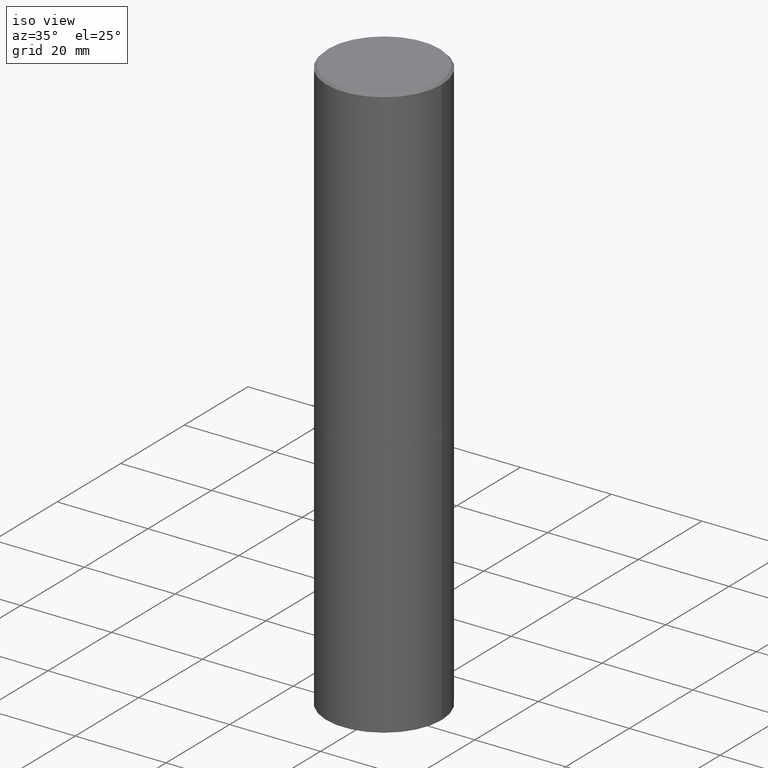
[diagram: clean part render]
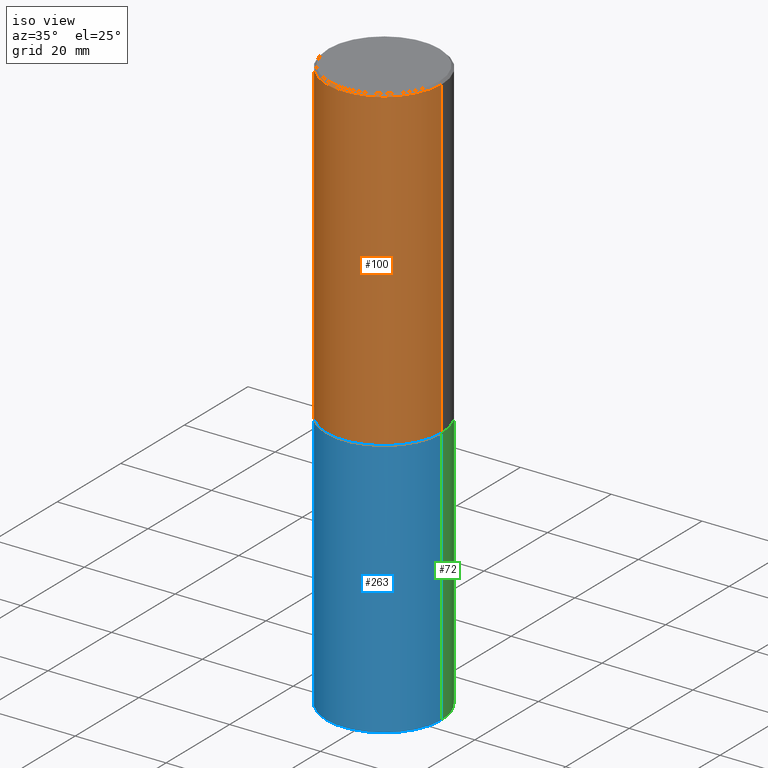
[diagram: same view with three faces highlighted in distinct colors, each labeled with its STEP entity id]
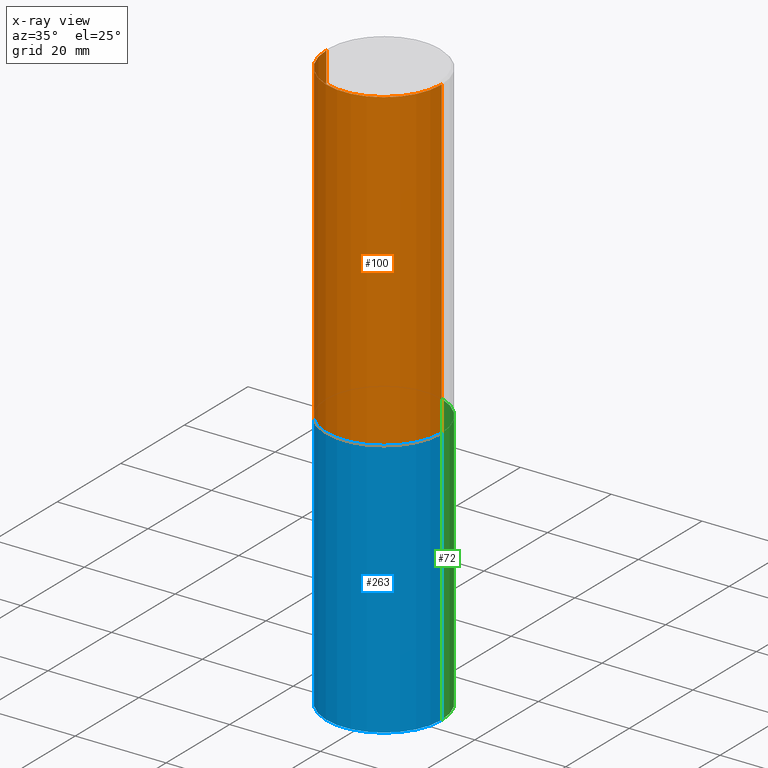
[diagram: x-ray of the same camera — body ghosted, the three highlighted faces saturated]
A machine part, iso view with three faces highlighted in distinct colors.
The next image is the same camera in x-ray (body ghosted, the three faces saturated) — at least one of them is partly hidden behind the body in this view.
Their STEP definitions:

[orange] entity #100 — the highlighted cylindrical surface (partial cylindrical patch) has radius 12.7 mm, axis along (-0, 0, 1).
#7 = VERTEX_POINT ( 'NONE', #15 ) ;
#15 = CARTESIAN_POINT ( 'NONE',  ( 0.5000000000000001110, -1.308956353932294179E-14, -2.749000000000000110 ) ) ;
#23 = EDGE_CURVE ( 'NONE', #7, #349, #48, .T. ) ;
#48 = LINE ( 'NONE', #161, #317 ) ;
#63 = CARTESIAN_POINT ( 'NONE',  ( 0.4999999999999996114, -3.500078625662626318E-15, -0.02000000000000010797 ) ) ;
#71 = VERTEX_POINT ( 'NONE', #213 ) ;
#79 = EDGE_CURVE ( 'NONE', #228, #349, #256, .T. ) ;
#85 = DIRECTION ( 'NONE',  ( 1.000000000000000000, -6.982962677686267499E-15, 4.876176775795936353E-29 ) ) ;
#100 = ADVANCED_FACE ( 'NONE', ( #143 ), #255, .T. ) ;
#130 = AXIS2_PLACEMENT_3D ( 'NONE', #200, #147, #199 ) ;
#141 = DIRECTION ( 'NONE',  ( -2.445468806185136877E-29, 3.491481338843145188E-15, 1.000000000000000000 ) ) ;
#143 = FACE_OUTER_BOUND ( 'NONE', #293, .T. ) ;
#147 = DIRECTION ( 'NONE',  ( -2.445468806185136597E-29, 3.491481338843145583E-15, 1.000000000000000000 ) ) ;
#155 = ORIENTED_EDGE ( 'NONE', *, *, #290, .F. ) ;
#158 = DIRECTION ( 'NONE',  ( -2.445468806185136597E-29, 3.491481338843145583E-15, 1.000000000000000000 ) ) ;
#161 = CARTESIAN_POINT ( 'NONE',  ( 0.4999999999999998335, -3.491481338843132566E-15, 2.438088387897967336E-29 ) ) ;
#164 = DIRECTION ( 'NONE',  ( -2.445468806185136877E-29, 3.491481338843145188E-15, 1.000000000000000000 ) ) ;
#165 = EDGE_CURVE ( 'NONE', #71, #7, #287, .T. ) ;
#167 = AXIS2_PLACEMENT_3D ( 'NONE', #171, #205, #85 ) ;
#171 = CARTESIAN_POINT ( 'NONE',  ( 0.000000000000000000, 0.000000000000000000, 0.000000000000000000 ) ) ;
#182 = ORIENTED_EDGE ( 'NONE', *, *, #23, .T. ) ;
#199 = DIRECTION ( 'NONE',  ( 1.000000000000000000, -6.982962677686265133E-15, 0.000000000000000000 ) ) ;
#200 = CARTESIAN_POINT ( 'NONE',  ( 6.722593748202941159E-29, -9.598082200479808430E-15, -2.749000000000000110 ) ) ;
#201 = CARTESIAN_POINT ( 'NONE',  ( -0.4999999999999998335, 3.552713678800499746E-15, -2.459467545127452330E-29 ) ) ;
#205 = DIRECTION ( 'NONE',  ( -2.445468806185136597E-29, 3.491481338843145583E-15, 1.000000000000000000 ) ) ;
#213 = CARTESIAN_POINT ( 'NONE',  ( -0.5000000000000001110, -1.281242234827831779E-15, -2.749000000000000110 ) ) ;
#228 = VERTEX_POINT ( 'NONE', #277 ) ;
#255 = CYLINDRICAL_SURFACE ( 'NONE', #167, 0.4999999999999998335 ) ;
#256 = CIRCLE ( 'NONE', #338, 0.4999999999999996114 ) ;
#277 = CARTESIAN_POINT ( 'NONE',  ( -0.4999999999999996114, 3.421651712066267296E-15, -0.02000000000000010797 ) ) ;
#279 = LINE ( 'NONE', #201, #299 ) ;
#287 = CIRCLE ( 'NONE', #130, 0.5000000000000001110 ) ;
#290 = EDGE_CURVE ( 'NONE', #71, #228, #279, .T. ) ;
#293 = EDGE_LOOP ( 'NONE', ( #155, #318, #182, #298 ) ) ;
#298 = ORIENTED_EDGE ( 'NONE', *, *, #79, .F. ) ;
#299 = VECTOR ( 'NONE', #141, 39.37007874015748143 ) ;
#317 = VECTOR ( 'NONE', #164, 39.37007874015748143 ) ;
#318 = ORIENTED_EDGE ( 'NONE', *, *, #165, .T. ) ;
#338 = AXIS2_PLACEMENT_3D ( 'NONE', #352, #158, #353 ) ;
#349 = VERTEX_POINT ( 'NONE', #63 ) ;
#352 = CARTESIAN_POINT ( 'NONE',  ( 4.890937612370299433E-31, -6.982962677686328587E-17, -0.02000000000000010797 ) ) ;
#353 = DIRECTION ( 'NONE',  ( 1.000000000000000000, -6.982962677686266711E-15, 0.000000000000000000 ) ) ;

[blue] entity #263 — the highlighted cylindrical surface (partial cylindrical patch) has radius 12.7 mm, axis along (-0, 0, 1).
#21 = DIRECTION ( 'NONE',  ( -2.445468806185136597E-29, 3.491481338843145583E-15, 1.000000000000000000 ) ) ;
#22 = DIRECTION ( 'NONE',  ( -2.445468806185136877E-29, 3.491481338843145188E-15, 1.000000000000000000 ) ) ;
#29 = DIRECTION ( 'NONE',  ( -2.445468806185136597E-29, 3.491481338843145583E-15, 1.000000000000000000 ) ) ;
#31 = CARTESIAN_POINT ( 'NONE',  ( 0.5000000000000000000, -1.309305502066178321E-14, -2.750000000000000000 ) ) ;
#36 = DIRECTION ( 'NONE',  ( 1.000000000000000000, -6.982962677686266711E-15, 0.000000000000000000 ) ) ;
#41 = ORIENTED_EDGE ( 'NONE', *, *, #333, .T. ) ;
#51 = VERTEX_POINT ( 'NONE', #190 ) ;
#54 = CARTESIAN_POINT ( 'NONE',  ( -0.5000000000000000000, 3.552713678800500929E-15, -2.459467545127452891E-29 ) ) ;
#56 = DIRECTION ( 'NONE',  ( 1.000000000000000000, -6.982962677686266711E-15, 0.000000000000000000 ) ) ;
#82 = CARTESIAN_POINT ( 'NONE',  ( 6.725039217009124520E-29, -9.601573681818649859E-15, -2.750000000000000000 ) ) ;
#90 = AXIS2_PLACEMENT_3D ( 'NONE', #249, #21, #107 ) ;
#94 = VERTEX_POINT ( 'NONE', #335 ) ;
#107 = DIRECTION ( 'NONE',  ( 1.000000000000000000, -6.982962677686266711E-15, 4.876176775795935793E-29 ) ) ;
#119 = VERTEX_POINT ( 'NONE', #364 ) ;
#121 = ORIENTED_EDGE ( 'NONE', *, *, #278, .F. ) ;
#140 = CYLINDRICAL_SURFACE ( 'NONE', #90, 0.5000000000000000000 ) ;
#170 = DIRECTION ( 'NONE',  ( -2.445468806185136877E-29, 3.491481338843145188E-15, 1.000000000000000000 ) ) ;
#172 = CARTESIAN_POINT ( 'NONE',  ( 0.5000000000000000000, -3.491481338843133355E-15, 2.438088387897967896E-29 ) ) ;
#173 = CIRCLE ( 'NONE', #267, 0.5000000000000000000 ) ;
#180 = CIRCLE ( 'NONE', #304, 0.5000000000000000000 ) ;
#184 = EDGE_CURVE ( 'NONE', #119, #328, #363, .T. ) ;
#190 = CARTESIAN_POINT ( 'NONE',  ( -0.5000000000000000000, -9.976776509216688154E-15, -5.000000000000000000 ) ) ;
#206 = EDGE_CURVE ( 'NONE', #94, #328, #173, .T. ) ;
#249 = CARTESIAN_POINT ( 'NONE',  ( 0.000000000000000000, 0.000000000000000000, 0.000000000000000000 ) ) ;
#251 = VECTOR ( 'NONE', #170, 39.37007874015748143 ) ;
#252 = DIRECTION ( 'NONE',  ( -2.445468806185136597E-29, 3.491481338843145583E-15, 1.000000000000000000 ) ) ;
#262 = EDGE_LOOP ( 'NONE', ( #121, #41, #302, #289 ) ) ;
#263 = ADVANCED_FACE ( 'NONE', ( #311 ), #140, .T. ) ;
#267 = AXIS2_PLACEMENT_3D ( 'NONE', #82, #252, #56 ) ;
#278 = EDGE_CURVE ( 'NONE', #51, #94, #359, .T. ) ;
#284 = CARTESIAN_POINT ( 'NONE',  ( 1.222734403092568523E-28, -1.745740669421572989E-14, -5.000000000000000000 ) ) ;
#289 = ORIENTED_EDGE ( 'NONE', *, *, #206, .F. ) ;
#302 = ORIENTED_EDGE ( 'NONE', *, *, #184, .T. ) ;
#304 = AXIS2_PLACEMENT_3D ( 'NONE', #284, #29, #36 ) ;
#311 = FACE_OUTER_BOUND ( 'NONE', #262, .T. ) ;
#328 = VERTEX_POINT ( 'NONE', #31 ) ;
#333 = EDGE_CURVE ( 'NONE', #51, #119, #180, .T. ) ;
#335 = CARTESIAN_POINT ( 'NONE',  ( -0.5000000000000000000, -9.976776509216688154E-15, -2.750000000000000000 ) ) ;
#354 = VECTOR ( 'NONE', #22, 39.37007874015748143 ) ;
#359 = LINE ( 'NONE', #54, #251 ) ;
#363 = LINE ( 'NONE', #172, #354 ) ;
#364 = CARTESIAN_POINT ( 'NONE',  ( 0.5000000000000000000, -2.094888803305886324E-14, -5.000000000000000000 ) ) ;

[green] entity #72 — the highlighted cylindrical surface (partial cylindrical patch) has radius 12.7 mm, axis along (-0, 0, 1).
#3 = DIRECTION ( 'NONE',  ( 1.000000000000000000, -6.982962677686266711E-15, 0.000000000000000000 ) ) ;
#10 = CIRCLE ( 'NONE', #221, 0.5000000000000000000 ) ;
#20 = CARTESIAN_POINT ( 'NONE',  ( 1.222734403092568523E-28, -1.745740669421572989E-14, -5.000000000000000000 ) ) ;
#22 = DIRECTION ( 'NONE',  ( -2.445468806185136877E-29, 3.491481338843145188E-15, 1.000000000000000000 ) ) ;
#31 = CARTESIAN_POINT ( 'NONE',  ( 0.5000000000000000000, -1.309305502066178321E-14, -2.750000000000000000 ) ) ;
#51 = VERTEX_POINT ( 'NONE', #190 ) ;
#54 = CARTESIAN_POINT ( 'NONE',  ( -0.5000000000000000000, 3.552713678800500929E-15, -2.459467545127452891E-29 ) ) ;
#72 = ADVANCED_FACE ( 'NONE', ( #129 ), #239, .T. ) ;
#94 = VERTEX_POINT ( 'NONE', #335 ) ;
#97 = DIRECTION ( 'NONE',  ( 1.000000000000000000, -6.982962677686266711E-15, 4.876176775795935793E-29 ) ) ;
#99 = ORIENTED_EDGE ( 'NONE', *, *, #184, .F. ) ;
#119 = VERTEX_POINT ( 'NONE', #364 ) ;
#129 = FACE_OUTER_BOUND ( 'NONE', #351, .T. ) ;
#133 = DIRECTION ( 'NONE',  ( -2.445468806185136597E-29, 3.491481338843145583E-15, 1.000000000000000000 ) ) ;
#170 = DIRECTION ( 'NONE',  ( -2.445468806185136877E-29, 3.491481338843145188E-15, 1.000000000000000000 ) ) ;
#172 = CARTESIAN_POINT ( 'NONE',  ( 0.5000000000000000000, -3.491481338843133355E-15, 2.438088387897967896E-29 ) ) ;
#176 = DIRECTION ( 'NONE',  ( -2.445468806185136597E-29, 3.491481338843145583E-15, 1.000000000000000000 ) ) ;
#179 = AXIS2_PLACEMENT_3D ( 'NONE', #214, #133, #97 ) ;
#184 = EDGE_CURVE ( 'NONE', #119, #328, #363, .T. ) ;
#190 = CARTESIAN_POINT ( 'NONE',  ( -0.5000000000000000000, -9.976776509216688154E-15, -5.000000000000000000 ) ) ;
#191 = AXIS2_PLACEMENT_3D ( 'NONE', #292, #176, #3 ) ;
#195 = EDGE_CURVE ( 'NONE', #119, #51, #10, .T. ) ;
#198 = CIRCLE ( 'NONE', #191, 0.5000000000000000000 ) ;
#214 = CARTESIAN_POINT ( 'NONE',  ( 0.000000000000000000, 0.000000000000000000, 0.000000000000000000 ) ) ;
#221 = AXIS2_PLACEMENT_3D ( 'NONE', #20, #224, #282 ) ;
#224 = DIRECTION ( 'NONE',  ( -2.445468806185136597E-29, 3.491481338843145583E-15, 1.000000000000000000 ) ) ;
#239 = CYLINDRICAL_SURFACE ( 'NONE', #179, 0.5000000000000000000 ) ;
#248 = ORIENTED_EDGE ( 'NONE', *, *, #195, .T. ) ;
#251 = VECTOR ( 'NONE', #170, 39.37007874015748143 ) ;
#258 = ORIENTED_EDGE ( 'NONE', *, *, #330, .F. ) ;
#266 = ORIENTED_EDGE ( 'NONE', *, *, #278, .T. ) ;
#278 = EDGE_CURVE ( 'NONE', #51, #94, #359, .T. ) ;
#282 = DIRECTION ( 'NONE',  ( 1.000000000000000000, -6.982962677686266711E-15, 0.000000000000000000 ) ) ;
#292 = CARTESIAN_POINT ( 'NONE',  ( 6.725039217009124520E-29, -9.601573681818649859E-15, -2.750000000000000000 ) ) ;
#328 = VERTEX_POINT ( 'NONE', #31 ) ;
#330 = EDGE_CURVE ( 'NONE', #328, #94, #198, .T. ) ;
#335 = CARTESIAN_POINT ( 'NONE',  ( -0.5000000000000000000, -9.976776509216688154E-15, -2.750000000000000000 ) ) ;
#351 = EDGE_LOOP ( 'NONE', ( #248, #266, #258, #99 ) ) ;
#354 = VECTOR ( 'NONE', #22, 39.37007874015748143 ) ;
#359 = LINE ( 'NONE', #54, #251 ) ;
#363 = LINE ( 'NONE', #172, #354 ) ;
#364 = CARTESIAN_POINT ( 'NONE',  ( 0.5000000000000000000, -2.094888803305886324E-14, -5.000000000000000000 ) ) ;